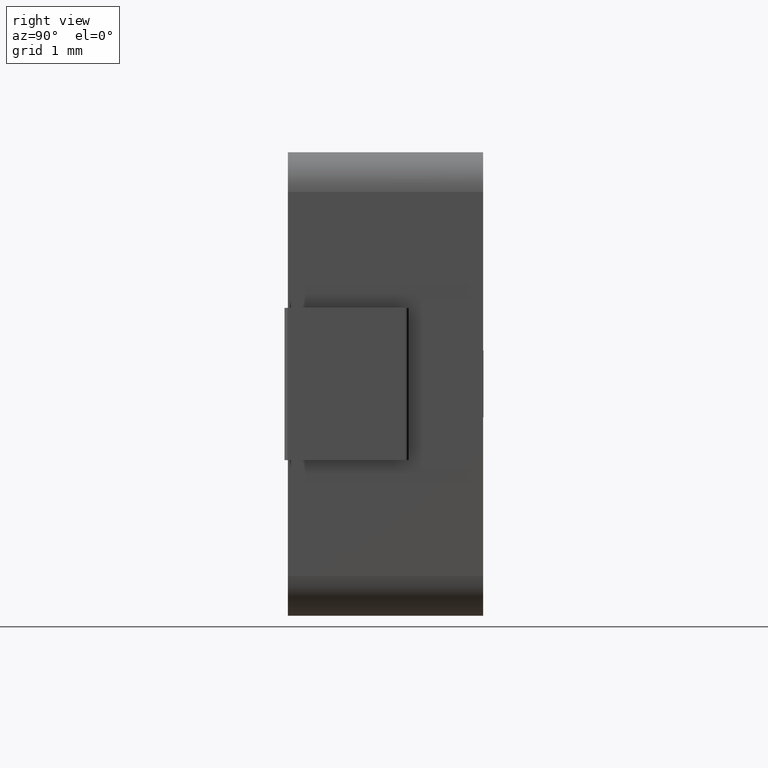
[diagram: clean part render]
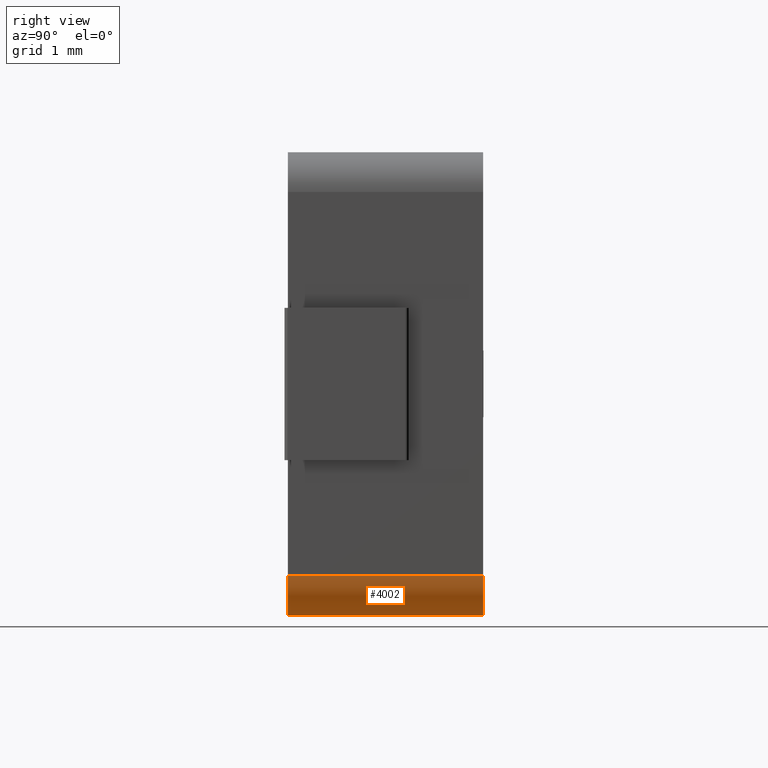
[diagram: same view with one face highlighted and labeled with its STEP entity id]
A machine part, right view. The second image highlights one B-rep face of the part: STEP entity #4002.
In plain terms, the highlighted cylindrical surface (partial cylindrical patch) has radius 0.5999 mm, axis along (0, 1, 0).
Its self-contained STEP definition (entity closure, byte-faithful):
#21 = ORIENTED_EDGE ( 'NONE', *, *, #3044, .F. ) ;
#184 = CARTESIAN_POINT ( 'NONE',  ( 7.000100000000000700, 0.0000000000000000000, -7.000000000000000000 ) ) ;
#350 = EDGE_CURVE ( 'NONE', #695, #365, #2181, .T. ) ;
#365 = VERTEX_POINT ( 'NONE', #3070 ) ;
#366 = CARTESIAN_POINT ( 'NONE',  ( 7.599999999999999600, 2.950000000000000200, -6.400100000000001000 ) ) ;
#526 = CARTESIAN_POINT ( 'NONE',  ( 7.000100000000000700, 2.950000000000000200, -6.400100000000001000 ) ) ;
#614 = VECTOR ( 'NONE', #2714, 1000.000000000000000 ) ;
#695 = VERTEX_POINT ( 'NONE', #1351 ) ;
#726 = FACE_OUTER_BOUND ( 'NONE', #1335, .T. ) ;
#791 = EDGE_CURVE ( 'NONE', #365, #3366, #2833, .T. ) ;
#832 = CARTESIAN_POINT ( 'NONE',  ( 7.000100000000000700, 0.0000000000000000000, -6.400100000000001000 ) ) ;
#839 = DIRECTION ( 'NONE',  ( 0.0000000000000000000, 1.000000000000000000, 0.0000000000000000000 ) ) ;
#1132 = CARTESIAN_POINT ( 'NONE',  ( 7.599999999999999600, 2.950000000000000200, -6.400100000000001000 ) ) ;
#1335 = EDGE_LOOP ( 'NONE', ( #21, #3462, #1591, #1756 ) ) ;
#1351 = CARTESIAN_POINT ( 'NONE',  ( 7.000099999999998900, 0.0000000000000000000, -7.000000000000000000 ) ) ;
#1462 = AXIS2_PLACEMENT_3D ( 'NONE', #526, #839, #3396 ) ;
#1514 = AXIS2_PLACEMENT_3D ( 'NONE', #832, #1791, #3404 ) ;
#1591 = ORIENTED_EDGE ( 'NONE', *, *, #350, .F. ) ;
#1616 = CYLINDRICAL_SURFACE ( 'NONE', #1462, 0.5999000000000004300 ) ;
#1756 = ORIENTED_EDGE ( 'NONE', *, *, #2035, .F. ) ;
#1791 = DIRECTION ( 'NONE',  ( 0.0000000000000000000, -1.000000000000000000, 0.0000000000000000000 ) ) ;
#1876 = VERTEX_POINT ( 'NONE', #4131 ) ;
#2035 = EDGE_CURVE ( 'NONE', #1876, #695, #2293, .T. ) ;
#2075 = CIRCLE ( 'NONE', #3660, 0.5999000000000004300 ) ;
#2101 = CARTESIAN_POINT ( 'NONE',  ( 7.000100000000000700, 2.950000000000000200, -6.400100000000001000 ) ) ;
#2181 = CIRCLE ( 'NONE', #1514, 0.5999000000000004300 ) ;
#2269 = VECTOR ( 'NONE', #3933, 1000.000000000000000 ) ;
#2293 = LINE ( 'NONE', #184, #614 ) ;
#2714 = DIRECTION ( 'NONE',  ( 0.0000000000000000000, -1.000000000000000000, 0.0000000000000000000 ) ) ;
#2763 = DIRECTION ( 'NONE',  ( 0.0000000000000000000, 0.0000000000000000000, -1.000000000000000000 ) ) ;
#2833 = LINE ( 'NONE', #1132, #2269 ) ;
#3044 = EDGE_CURVE ( 'NONE', #3366, #1876, #2075, .T. ) ;
#3070 = CARTESIAN_POINT ( 'NONE',  ( 7.599999999999999600, 0.0000000000000000000, -6.400100000000001000 ) ) ;
#3366 = VERTEX_POINT ( 'NONE', #366 ) ;
#3396 = DIRECTION ( 'NONE',  ( 0.0000000000000000000, 0.0000000000000000000, 1.000000000000000000 ) ) ;
#3404 = DIRECTION ( 'NONE',  ( 0.0000000000000000000, 0.0000000000000000000, -1.000000000000000000 ) ) ;
#3462 = ORIENTED_EDGE ( 'NONE', *, *, #791, .F. ) ;
#3660 = AXIS2_PLACEMENT_3D ( 'NONE', #2101, #4036, #2763 ) ;
#3933 = DIRECTION ( 'NONE',  ( -0.0000000000000000000, 1.000000000000000000, -0.0000000000000000000 ) ) ;
#4002 = ADVANCED_FACE ( 'NONE', ( #726 ), #1616, .T. ) ;
#4036 = DIRECTION ( 'NONE',  ( -0.0000000000000000000, 1.000000000000000000, -0.0000000000000000000 ) ) ;
#4131 = CARTESIAN_POINT ( 'NONE',  ( 7.000099999999998900, 2.950000000000000200, -7.000000000000000000 ) ) ;